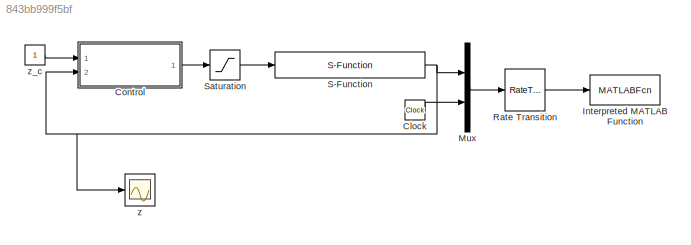
MODEL slx_843bb999f5bf
KIND model
CONFIG AbsTol = auto
CONFIG EnableMultiTasking = off
CONFIG FixedStep = auto
CONFIG InitFcn = mass_spring_damper_param
CONFIG MaxStep = 1
CONFIG MinStep = auto
CONFIG RelTol = 1e-3
CONFIG SampleTimeConstraint = Unconstrained
CONFIG Solver = ode45
CONFIG SolverName = ode45
CONFIG StartTime = 0.0
CONFIG StopTime = 50
BLOCK [Clock] Clock
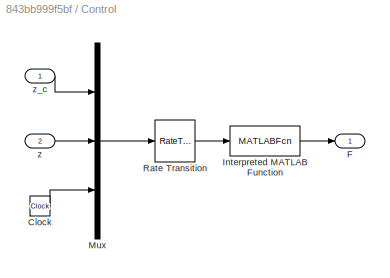
BLOCK [SubSystem] Control
  Ports = [2, 1]
  RequestExecContextInheritance = off
BLOCK [Clock] Control/Clock
BLOCK [Outport] Control/F
  IconDisplay = Port number
BLOCK [MATLABFcn] Control/Interpreted MATLAB Function
  MATLABFcn = mass_spring_damper_ctrl(u,P)
  OutputDimensions = 1
  Ports = [1, 1]
BLOCK [Mux] Control/Mux
  DisplayOption = bar
  Inputs = 3
  Ports = [3, 1]
BLOCK [RateTransition] Control/Rate Transition
  OutPortSampleTime = P.Ts
BLOCK [Inport] Control/z
  IconDisplay = Port number
  Port = 2
BLOCK [Inport] Control/z_c
  IconDisplay = Port number
BLOCK [MATLABFcn] Interpreted MATLAB Function
  MATLABFcn = mass_spring_damper_animation(u)
  OutputDimensions = 0
  Ports = [1]
BLOCK [Mux] Mux
  DisplayOption = bar
  Inputs = 2
  Ports = [2, 1]
BLOCK [RateTransition] Rate Transition
  OutPortSampleTime = P.t_plot
BLOCK [S-Function] S-Function
  EnableBusSupport = off
  FunctionName = mass_spring_damper_dynamics
  Parameters = P
  Ports = [1, 1]
  SFcnIsStateOwnerBlock = off
  SFunctionDeploymentMode = off
BLOCK [Saturate] Saturation
  InputPortMap = u0
  LowerLimit = -P.F_max
  Ports = [1, 1]
  UpperLimit = P.F_max
BLOCK [Scope] z
  Floating = off
  NumInputPorts = 1
  Ports = [1]
  ScopeSpecificationString = Simulink.scopes.TimeScopeBlockCfg('CurrentConfiguration', extmgr.ConfigurationSet(extmgr.Configuration('Core','General UI',true),extmgr.Configuration('Core','Source UI',true),extmgr.Configuration('Sources','WiredSimulink',true),extmgr.Configuration('Visuals','Time Domain',true,'SerializedDisplays',{struct('MinYLimReal','-0.13156','MaxYLimReal','1.18406','YLabelReal','','MinYLimMag','0.00000','MaxY...<+1428ch>
BLOCK [Constant] z_c
  SampleTime = P.Ts
LINE Clock:1 -> Mux:2
LINE Control/Clock:1 -> Control/Mux:3
LINE Control/Interpreted MATLAB Function:1 -> Control/F:1
LINE Control/Mux:1 -> Control/Rate Transition:1
LINE Control/Rate Transition:1 -> Control/Interpreted MATLAB Function:1
LINE Control/z:1 -> Control/Mux:2
LINE Control/z_c:1 -> Control/Mux:1
LINE Control:1 -> Saturation:1
LINE Mux:1 -> Rate Transition:1
LINE Rate Transition:1 -> Interpreted MATLAB Function:1
NET S-Function:1 -> Control:2, Mux:1, z:1
LINE Saturation:1 -> S-Function:1
LINE z_c:1 -> Control:1
note: NET lines group one-source signal fan-out (src -> all destinations, sorted); 1:1 wires keep LINE
